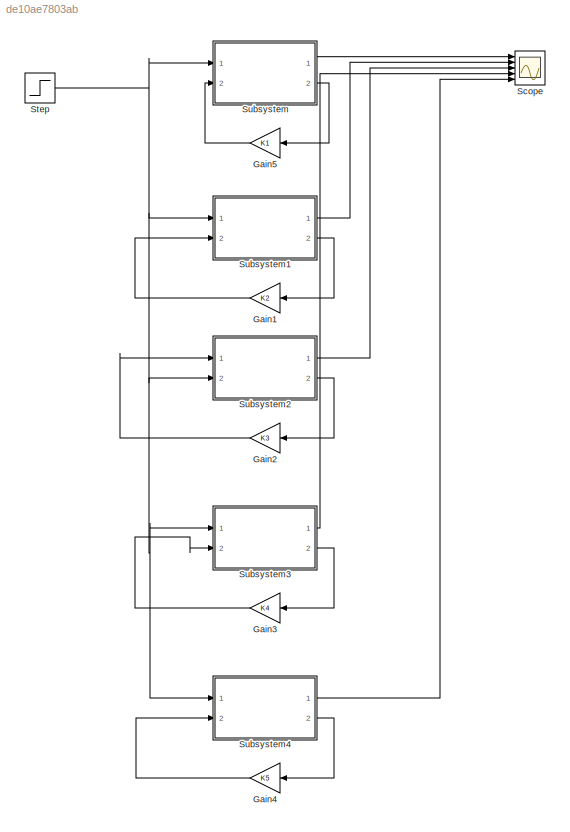
MODEL slx_de10ae7803ab
KIND model
CONFIG AbsTol = auto
CONFIG EnableMultiTasking = off
CONFIG FixedStep = auto
CONFIG MaxStep = auto
CONFIG MinStep = auto
CONFIG RelTol = 1e-3
CONFIG SampleTimeConstraint = Unconstrained
CONFIG SolverName = VariableStepAuto
CONFIG StartTime = 0.0
CONFIG StopTime = 30
BLOCK [Gain] Gain1
  Gain = K2
  Multiplication = Matrix(K*u) (u vector)
  NameLocation = top
BLOCK [Gain] Gain2
  Gain = K3
  Multiplication = Matrix(K*u) (u vector)
  NameLocation = top
BLOCK [Gain] Gain3
  Gain = K4
  Multiplication = Matrix(K*u) (u vector)
  NameLocation = top
BLOCK [Gain] Gain4
  Gain = K5
  Multiplication = Matrix(K*u) (u vector)
  NameLocation = top
BLOCK [Gain] Gain5
  Gain = K1
  Multiplication = Matrix(K*u) (u vector)
  NameLocation = top
BLOCK [Scope] Scope
  Floating = off
  NumInputPorts = 5
  Ports = [5]
  ScopeSpecificationString = Simulink.scopes.TimeScopeBlockCfg('CurrentConfiguration', extmgr.ConfigurationSet(extmgr.Configuration('Core','General UI',true),extmgr.Configuration('Core','Source UI',true),extmgr.Configuration('Sources','WiredSimulink',true),extmgr.Configuration('Visuals','Time Domain',true,'SerializedDisplays',{struct('MinYLimReal','-0.1243','MaxYLimReal','1.12492','YLabelReal','','MinYLimMag','0.00000','MaxYL...<+1399ch>
BLOCK [Step] Step
  After = 0.5
  SampleTime = 0
  Time = 10
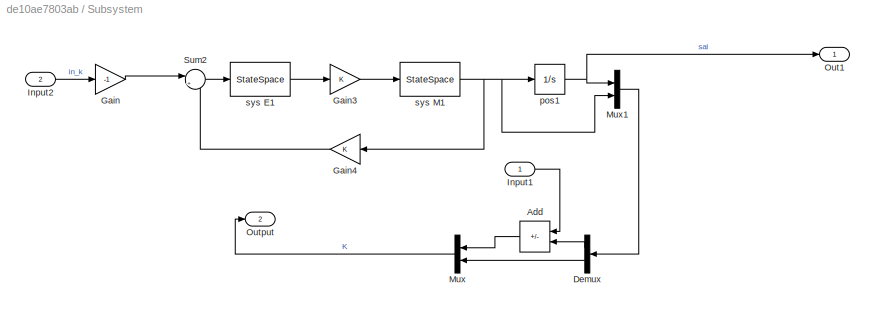
BLOCK [SubSystem] Subsystem
  Ports = [2, 2]
  RequestExecContextInheritance = off
BLOCK [Sum] Subsystem/Add
  IconShape = rectangular
  Inputs = -+
  NameLocation = top
  Ports = [2, 1]
BLOCK [Demux] Subsystem/Demux
  NameLocation = top
  Outputs = 2
  Ports = [1, 2]
BLOCK [Gain] Subsystem/Gain
  Gain = -1
BLOCK [Gain] Subsystem/Gain3
BLOCK [Gain] Subsystem/Gain4
  NameLocation = top
BLOCK [Inport] Subsystem/Input1
  IconDisplay = Signal name
BLOCK [Inport] Subsystem/Input2
  IconDisplay = Signal name
  Port = 2
BLOCK [Mux] Subsystem/Mux
  DisplayOption = bar
  Inputs = 2
  NameLocation = top
  Ports = [2, 1]
BLOCK [Mux] Subsystem/Mux1
  DisplayOption = bar
  Inputs = 2
  Ports = [2, 1]
BLOCK [Outport] Subsystem/Out1
  IconDisplay = Signal name
BLOCK [Outport] Subsystem/Output
  IconDisplay = Signal name
  Port = 2
BLOCK [Sum] Subsystem/Sum2
  Inputs = |+-
  Ports = [2, 1]
BLOCK [Integrator] Subsystem/pos1
  InitialCondition = 1
  Ports = [1, 1]
BLOCK [StateSpace] Subsystem/sys E1
  A = sysE.A
  B = sysE.B
  C = sysE.C
  D = sysE.D
  InitialCondition = 0
  Ports = [1, 1]
BLOCK [StateSpace] Subsystem/sys M1
  A = sysM.A
  B = sysM.B
  C = sysM.C
  D = sysM.D
  InitialCondition = 0
  Ports = [1, 1]
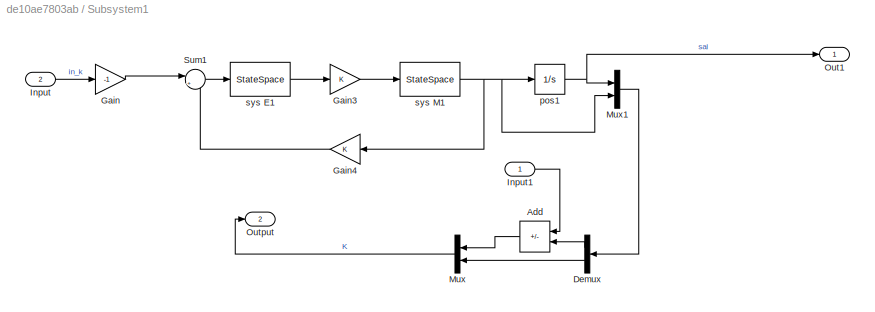
BLOCK [SubSystem] Subsystem1
  Ports = [2, 2]
  RequestExecContextInheritance = off
BLOCK [Sum] Subsystem1/Add
  IconShape = rectangular
  Inputs = -+
  NameLocation = top
  Ports = [2, 1]
BLOCK [Demux] Subsystem1/Demux
  NameLocation = top
  Outputs = 2
  Ports = [1, 2]
BLOCK [Gain] Subsystem1/Gain
  Gain = -1
BLOCK [Gain] Subsystem1/Gain3
BLOCK [Gain] Subsystem1/Gain4
  NameLocation = top
BLOCK [Inport] Subsystem1/Input
  IconDisplay = Signal name
  Port = 2
BLOCK [Inport] Subsystem1/Input1
  IconDisplay = Signal name
BLOCK [Mux] Subsystem1/Mux
  DisplayOption = bar
  Inputs = 2
  NameLocation = top
  Ports = [2, 1]
BLOCK [Mux] Subsystem1/Mux1
  DisplayOption = bar
  Inputs = 2
  Ports = [2, 1]
BLOCK [Outport] Subsystem1/Out1
  IconDisplay = Signal name
BLOCK [Outport] Subsystem1/Output
  IconDisplay = Signal name
  Port = 2
BLOCK [Sum] Subsystem1/Sum1
  Inputs = |+-
  Ports = [2, 1]
BLOCK [Integrator] Subsystem1/pos1
  InitialCondition = 1
  Ports = [1, 1]
BLOCK [StateSpace] Subsystem1/sys E1
  A = sysE.A
  B = sysE.B
  C = sysE.C
  D = sysE.D
  InitialCondition = 0
  Ports = [1, 1]
BLOCK [StateSpace] Subsystem1/sys M1
  A = sysM.A
  B = sysM.B
  C = sysM.C
  D = sysM.D
  InitialCondition = 0
  Ports = [1, 1]
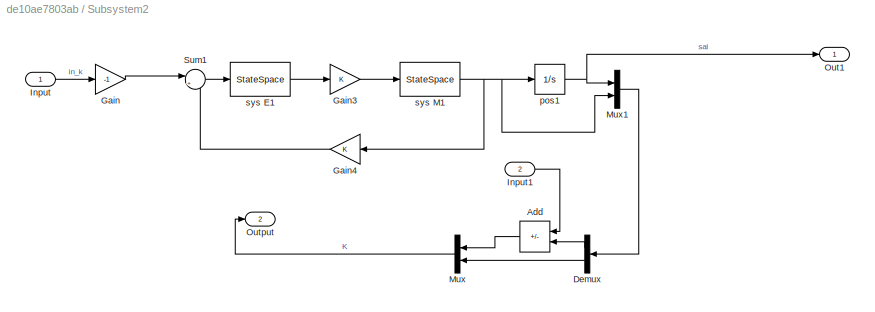
BLOCK [SubSystem] Subsystem2
  Ports = [2, 2]
  RequestExecContextInheritance = off
BLOCK [Sum] Subsystem2/Add
  IconShape = rectangular
  Inputs = -+
  NameLocation = top
  Ports = [2, 1]
BLOCK [Demux] Subsystem2/Demux
  NameLocation = top
  Outputs = 2
  Ports = [1, 2]
BLOCK [Gain] Subsystem2/Gain
  Gain = -1
BLOCK [Gain] Subsystem2/Gain3
BLOCK [Gain] Subsystem2/Gain4
  NameLocation = top
BLOCK [Inport] Subsystem2/Input
  IconDisplay = Signal name
BLOCK [Inport] Subsystem2/Input1
  IconDisplay = Signal name
  Port = 2
BLOCK [Mux] Subsystem2/Mux
  DisplayOption = bar
  Inputs = 2
  NameLocation = top
  Ports = [2, 1]
BLOCK [Mux] Subsystem2/Mux1
  DisplayOption = bar
  Inputs = 2
  Ports = [2, 1]
BLOCK [Outport] Subsystem2/Out1
  IconDisplay = Signal name
BLOCK [Outport] Subsystem2/Output
  IconDisplay = Signal name
  Port = 2
BLOCK [Sum] Subsystem2/Sum1
  Inputs = |+-
  Ports = [2, 1]
BLOCK [Integrator] Subsystem2/pos1
  InitialCondition = 1
  Ports = [1, 1]
BLOCK [StateSpace] Subsystem2/sys E1
  A = sysE.A
  B = sysE.B
  C = sysE.C
  D = sysE.D
  InitialCondition = 0
  Ports = [1, 1]
BLOCK [StateSpace] Subsystem2/sys M1
  A = sysM.A
  B = sysM.B
  C = sysM.C
  D = sysM.D
  InitialCondition = 0
  Ports = [1, 1]
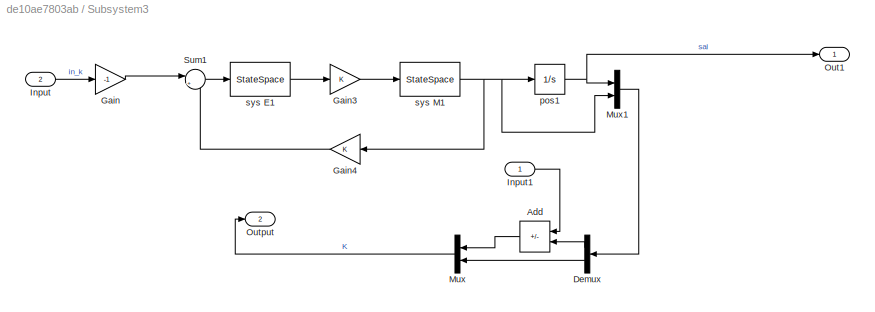
BLOCK [SubSystem] Subsystem3
  Ports = [2, 2]
  RequestExecContextInheritance = off
BLOCK [Sum] Subsystem3/Add
  IconShape = rectangular
  Inputs = -+
  NameLocation = top
  Ports = [2, 1]
BLOCK [Demux] Subsystem3/Demux
  NameLocation = top
  Outputs = 2
  Ports = [1, 2]
BLOCK [Gain] Subsystem3/Gain
  Gain = -1
BLOCK [Gain] Subsystem3/Gain3
BLOCK [Gain] Subsystem3/Gain4
  NameLocation = top
BLOCK [Inport] Subsystem3/Input
  IconDisplay = Signal name
  Port = 2
BLOCK [Inport] Subsystem3/Input1
  IconDisplay = Signal name
BLOCK [Mux] Subsystem3/Mux
  DisplayOption = bar
  Inputs = 2
  NameLocation = top
  Ports = [2, 1]
BLOCK [Mux] Subsystem3/Mux1
  DisplayOption = bar
  Inputs = 2
  Ports = [2, 1]
BLOCK [Outport] Subsystem3/Out1
  IconDisplay = Signal name
BLOCK [Outport] Subsystem3/Output
  IconDisplay = Signal name
  Port = 2
BLOCK [Sum] Subsystem3/Sum1
  Inputs = |+-
  Ports = [2, 1]
BLOCK [Integrator] Subsystem3/pos1
  InitialCondition = 1
  Ports = [1, 1]
BLOCK [StateSpace] Subsystem3/sys E1
  A = sysE.A
  B = sysE.B
  C = sysE.C
  D = sysE.D
  InitialCondition = 0
  Ports = [1, 1]
BLOCK [StateSpace] Subsystem3/sys M1
  A = sysM.A
  B = sysM.B
  C = sysM.C
  D = sysM.D
  InitialCondition = 0
  Ports = [1, 1]
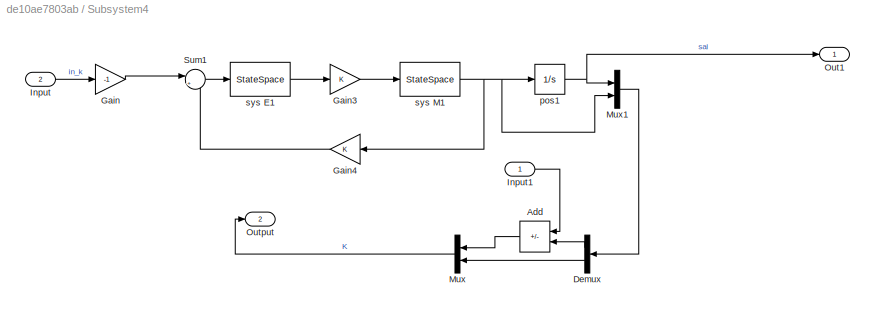
BLOCK [SubSystem] Subsystem4
  Ports = [2, 2]
  RequestExecContextInheritance = off
BLOCK [Sum] Subsystem4/Add
  IconShape = rectangular
  Inputs = -+
  NameLocation = top
  Ports = [2, 1]
BLOCK [Demux] Subsystem4/Demux
  NameLocation = top
  Outputs = 2
  Ports = [1, 2]
BLOCK [Gain] Subsystem4/Gain
  Gain = -1
BLOCK [Gain] Subsystem4/Gain3
BLOCK [Gain] Subsystem4/Gain4
  NameLocation = top
BLOCK [Inport] Subsystem4/Input
  IconDisplay = Signal name
  Port = 2
BLOCK [Inport] Subsystem4/Input1
  IconDisplay = Signal name
BLOCK [Mux] Subsystem4/Mux
  DisplayOption = bar
  Inputs = 2
  NameLocation = top
  Ports = [2, 1]
BLOCK [Mux] Subsystem4/Mux1
  DisplayOption = bar
  Inputs = 2
  Ports = [2, 1]
BLOCK [Outport] Subsystem4/Out1
  IconDisplay = Signal name
BLOCK [Outport] Subsystem4/Output
  IconDisplay = Signal name
  Port = 2
BLOCK [Sum] Subsystem4/Sum1
  Inputs = |+-
  Ports = [2, 1]
BLOCK [Integrator] Subsystem4/pos1
  InitialCondition = 1
  Ports = [1, 1]
BLOCK [StateSpace] Subsystem4/sys E1
  A = sysE.A
  B = sysE.B
  C = sysE.C
  D = sysE.D
  InitialCondition = 0
  Ports = [1, 1]
BLOCK [StateSpace] Subsystem4/sys M1
  A = sysM.A
  B = sysM.B
  C = sysM.C
  D = sysM.D
  InitialCondition = 0
  Ports = [1, 1]
LINE Gain1:1 -> Subsystem1:2
LINE Gain2:1 -> Subsystem2:1
LINE Gain3:1 -> Subsystem3:2
LINE Gain4:1 -> Subsystem4:2
LINE Gain5:1 -> Subsystem:2
NET Step:1 -> Subsystem1:1, Subsystem2:2, Subsystem3:1, Subsystem4:1, Subsystem:1
LINE Subsystem/Add:1 -> Subsystem/Mux:1
LINE Subsystem/Demux:1 -> Subsystem/Add:2
LINE Subsystem/Demux:2 -> Subsystem/Mux:2
LINE Subsystem/Gain3:1 -> Subsystem/sys M1:1
LINE Subsystem/Gain4:1 -> Subsystem/Sum2:2
LINE Subsystem/Gain:1 -> Subsystem/Sum2:1
LINE Subsystem/Input1:1 -> Subsystem/Add:1
LINE Subsystem/Input2:1 -> Subsystem/Gain:1
LINE Subsystem/Mux1:1 -> Subsystem/Demux:1
LINE Subsystem/Mux:1 -> Subsystem/Output:1
LINE Subsystem/Sum2:1 -> Subsystem/sys E1:1
NET Subsystem/pos1:1 -> Subsystem/Mux1:1, Subsystem/Out1:1
LINE Subsystem/sys E1:1 -> Subsystem/Gain3:1
NET Subsystem/sys M1:1 -> Subsystem/Gain4:1, Subsystem/Mux1:2, Subsystem/pos1:1
LINE Subsystem1/Add:1 -> Subsystem1/Mux:1
LINE Subsystem1/Demux:1 -> Subsystem1/Add:2
LINE Subsystem1/Demux:2 -> Subsystem1/Mux:2
LINE Subsystem1/Gain3:1 -> Subsystem1/sys M1:1
LINE Subsystem1/Gain4:1 -> Subsystem1/Sum1:2
LINE Subsystem1/Gain:1 -> Subsystem1/Sum1:1
LINE Subsystem1/Input1:1 -> Subsystem1/Add:1
LINE Subsystem1/Input:1 -> Subsystem1/Gain:1
LINE Subsystem1/Mux1:1 -> Subsystem1/Demux:1
LINE Subsystem1/Mux:1 -> Subsystem1/Output:1
LINE Subsystem1/Sum1:1 -> Subsystem1/sys E1:1
NET Subsystem1/pos1:1 -> Subsystem1/Mux1:1, Subsystem1/Out1:1
LINE Subsystem1/sys E1:1 -> Subsystem1/Gain3:1
NET Subsystem1/sys M1:1 -> Subsystem1/Gain4:1, Subsystem1/Mux1:2, Subsystem1/pos1:1
LINE Subsystem1:1 -> Scope:2
LINE Subsystem1:2 -> Gain1:1
LINE Subsystem2/Add:1 -> Subsystem2/Mux:1
LINE Subsystem2/Demux:1 -> Subsystem2/Add:2
LINE Subsystem2/Demux:2 -> Subsystem2/Mux:2
LINE Subsystem2/Gain3:1 -> Subsystem2/sys M1:1
LINE Subsystem2/Gain4:1 -> Subsystem2/Sum1:2
LINE Subsystem2/Gain:1 -> Subsystem2/Sum1:1
LINE Subsystem2/Input1:1 -> Subsystem2/Add:1
LINE Subsystem2/Input:1 -> Subsystem2/Gain:1
LINE Subsystem2/Mux1:1 -> Subsystem2/Demux:1
LINE Subsystem2/Mux:1 -> Subsystem2/Output:1
LINE Subsystem2/Sum1:1 -> Subsystem2/sys E1:1
NET Subsystem2/pos1:1 -> Subsystem2/Mux1:1, Subsystem2/Out1:1
LINE Subsystem2/sys E1:1 -> Subsystem2/Gain3:1
NET Subsystem2/sys M1:1 -> Subsystem2/Gain4:1, Subsystem2/Mux1:2, Subsystem2/pos1:1
LINE Subsystem2:1 -> Scope:3
LINE Subsystem2:2 -> Gain2:1
LINE Subsystem3/Add:1 -> Subsystem3/Mux:1
LINE Subsystem3/Demux:1 -> Subsystem3/Add:2
LINE Subsystem3/Demux:2 -> Subsystem3/Mux:2
LINE Subsystem3/Gain3:1 -> Subsystem3/sys M1:1
LINE Subsystem3/Gain4:1 -> Subsystem3/Sum1:2
LINE Subsystem3/Gain:1 -> Subsystem3/Sum1:1
LINE Subsystem3/Input1:1 -> Subsystem3/Add:1
LINE Subsystem3/Input:1 -> Subsystem3/Gain:1
LINE Subsystem3/Mux1:1 -> Subsystem3/Demux:1
LINE Subsystem3/Mux:1 -> Subsystem3/Output:1
LINE Subsystem3/Sum1:1 -> Subsystem3/sys E1:1
NET Subsystem3/pos1:1 -> Subsystem3/Mux1:1, Subsystem3/Out1:1
LINE Subsystem3/sys E1:1 -> Subsystem3/Gain3:1
NET Subsystem3/sys M1:1 -> Subsystem3/Gain4:1, Subsystem3/Mux1:2, Subsystem3/pos1:1
LINE Subsystem3:1 -> Scope:4
LINE Subsystem3:2 -> Gain3:1
LINE Subsystem4/Add:1 -> Subsystem4/Mux:1
LINE Subsystem4/Demux:1 -> Subsystem4/Add:2
LINE Subsystem4/Demux:2 -> Subsystem4/Mux:2
LINE Subsystem4/Gain3:1 -> Subsystem4/sys M1:1
LINE Subsystem4/Gain4:1 -> Subsystem4/Sum1:2
LINE Subsystem4/Gain:1 -> Subsystem4/Sum1:1
LINE Subsystem4/Input1:1 -> Subsystem4/Add:1
LINE Subsystem4/Input:1 -> Subsystem4/Gain:1
LINE Subsystem4/Mux1:1 -> Subsystem4/Demux:1
LINE Subsystem4/Mux:1 -> Subsystem4/Output:1
LINE Subsystem4/Sum1:1 -> Subsystem4/sys E1:1
NET Subsystem4/pos1:1 -> Subsystem4/Mux1:1, Subsystem4/Out1:1
LINE Subsystem4/sys E1:1 -> Subsystem4/Gain3:1
NET Subsystem4/sys M1:1 -> Subsystem4/Gain4:1, Subsystem4/Mux1:2, Subsystem4/pos1:1
LINE Subsystem4:1 -> Scope:5
LINE Subsystem4:2 -> Gain4:1
LINE Subsystem:1 -> Scope:1
LINE Subsystem:2 -> Gain5:1
note: NET lines group one-source signal fan-out (src -> all destinations, sorted); 1:1 wires keep LINE
